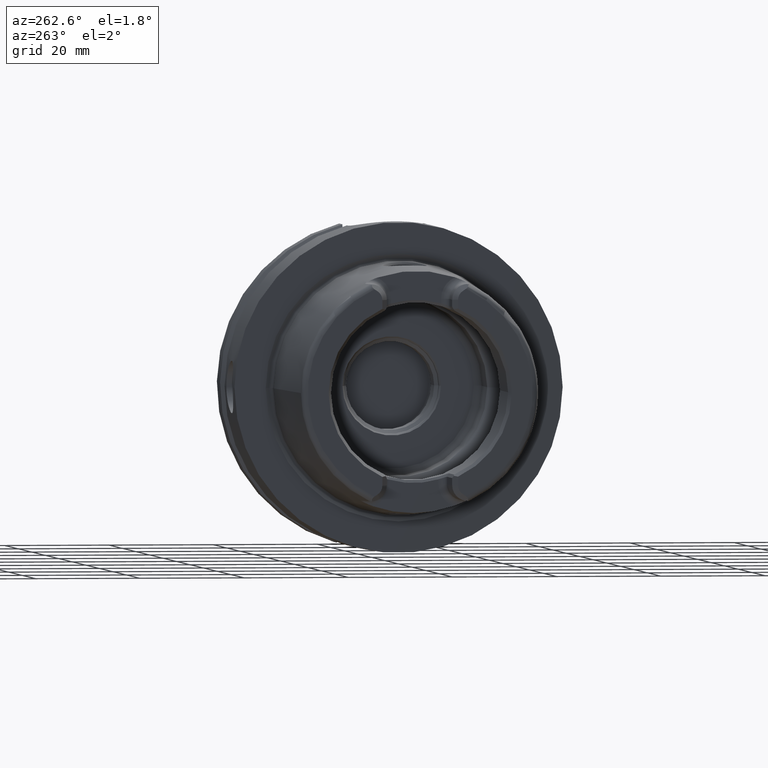
[diagram: clean part render]
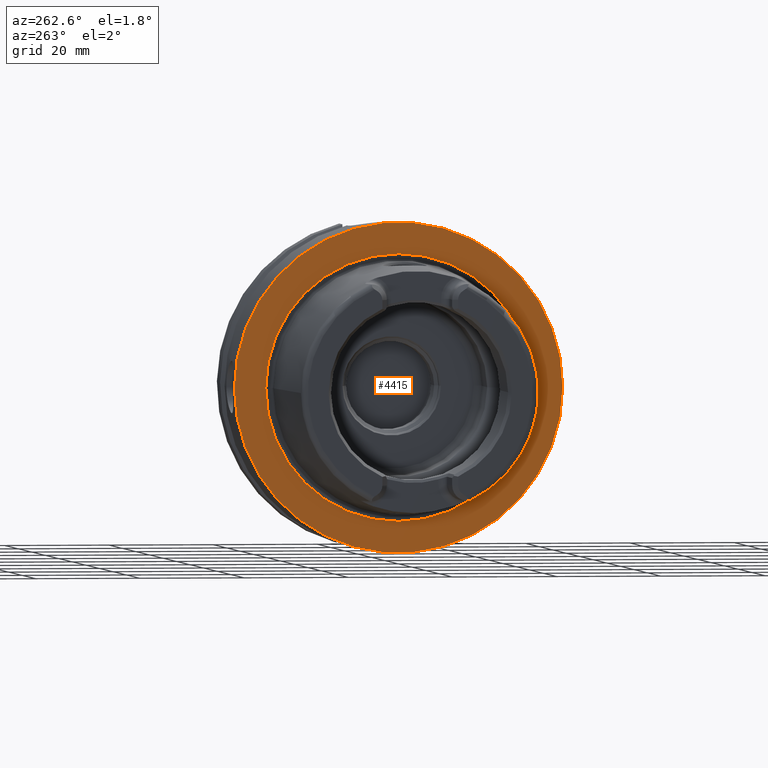
[diagram: same view with one face highlighted and labeled with its STEP entity id]
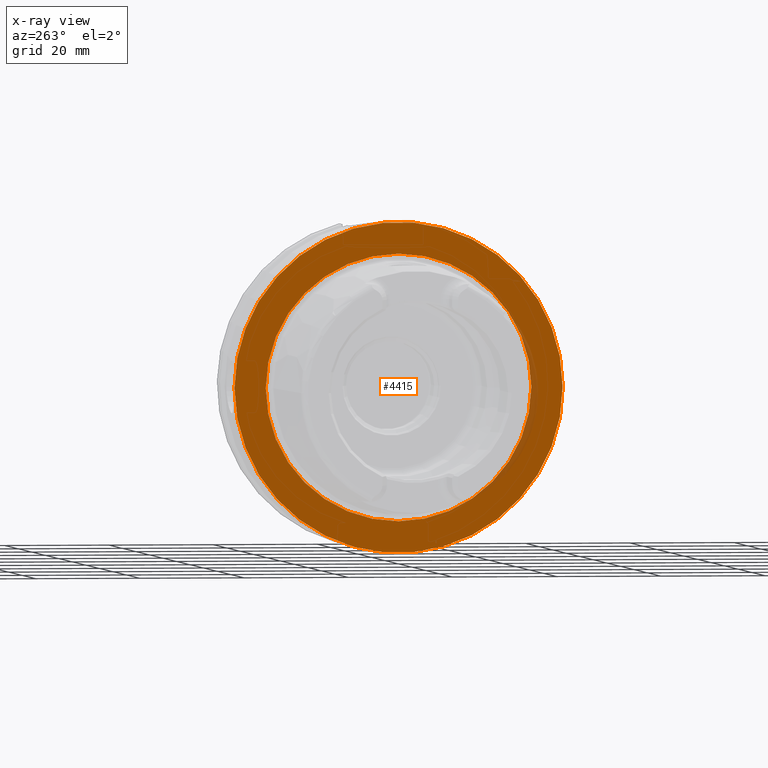
[diagram: x-ray of the same camera — body ghosted, the highlighted face saturated]
A machine part, auxiliary view. The second image highlights one B-rep face of the part: STEP entity #4415.
The next image is the same camera in x-ray: the body ghosted, the highlighted face saturated — about 4% of this face is hidden behind the body in this view.
In plain terms, the highlighted planar face has unit normal (1, 0, 0).
Its self-contained STEP definition (entity closure, byte-faithful):
#1068=CARTESIAN_POINT('',(-1.421085471520E-14,0.E0,0.E0));
#1069=DIRECTION('',(1.E0,0.E0,0.E0));
#1070=DIRECTION('',(0.E0,1.E0,0.E0));
#1071=AXIS2_PLACEMENT_3D('',#1068,#1069,#1070);
#1073=CARTESIAN_POINT('',(-1.421085471520E-14,0.E0,0.E0));
#1074=DIRECTION('',(-1.E0,0.E0,0.E0));
#1075=DIRECTION('',(0.E0,1.E0,0.E0));
#1076=AXIS2_PLACEMENT_3D('',#1073,#1074,#1075);
#1078=CARTESIAN_POINT('',(0.E0,0.E0,0.E0));
#1079=DIRECTION('',(-1.E0,0.E0,0.E0));
#1080=DIRECTION('',(0.E0,-1.E0,0.E0));
#1081=AXIS2_PLACEMENT_3D('',#1078,#1079,#1080);
#1083=CARTESIAN_POINT('',(0.E0,0.E0,0.E0));
#1084=DIRECTION('',(-1.E0,0.E0,0.E0));
#1085=DIRECTION('',(0.E0,1.E0,0.E0));
#1086=AXIS2_PLACEMENT_3D('',#1083,#1084,#1085);
#2668=CARTESIAN_POINT('',(-1.421085471520E-14,3.15E1,0.E0));
#2669=CARTESIAN_POINT('',(-1.421085471520E-14,-3.15E1,0.E0));
#2670=VERTEX_POINT('',#2668);
#2671=VERTEX_POINT('',#2669);
#2696=CARTESIAN_POINT('',(0.E0,-2.549042414966E1,0.E0));
#2697=VERTEX_POINT('',#2696);
#2698=CARTESIAN_POINT('',(0.E0,2.549042414966E1,0.E0));
#2699=VERTEX_POINT('',#2698);
#4400=CARTESIAN_POINT('',(0.E0,0.E0,0.E0));
#4401=DIRECTION('',(1.E0,0.E0,0.E0));
#4402=DIRECTION('',(0.E0,-1.E0,0.E0));
#4403=AXIS2_PLACEMENT_3D('',#4400,#4401,#4402);
#4404=PLANE('',#4403);
#4406=ORIENTED_EDGE('',*,*,#4405,.T.);
#4408=ORIENTED_EDGE('',*,*,#4407,.F.);
#4409=EDGE_LOOP('',(#4406,#4408));
#4410=FACE_OUTER_BOUND('',#4409,.F.);
#4411=ORIENTED_EDGE('',*,*,#4395,.T.);
#4412=ORIENTED_EDGE('',*,*,#4379,.T.);
#4413=EDGE_LOOP('',(#4411,#4412));
#4414=FACE_BOUND('',#4413,.F.);
#4415=ADVANCED_FACE('',(#4410,#4414),#4404,.F.);
#1072=CIRCLE('',#1071,3.15E1);
#1077=CIRCLE('',#1076,3.15E1);
#1082=CIRCLE('',#1081,2.549042414966E1);
#1087=CIRCLE('',#1086,2.549042414966E1);
#4379=EDGE_CURVE('',#2699,#2697,#1087,.T.);
#4395=EDGE_CURVE('',#2697,#2699,#1082,.T.);
#4405=EDGE_CURVE('',#2670,#2671,#1072,.T.);
#4407=EDGE_CURVE('',#2670,#2671,#1077,.T.);